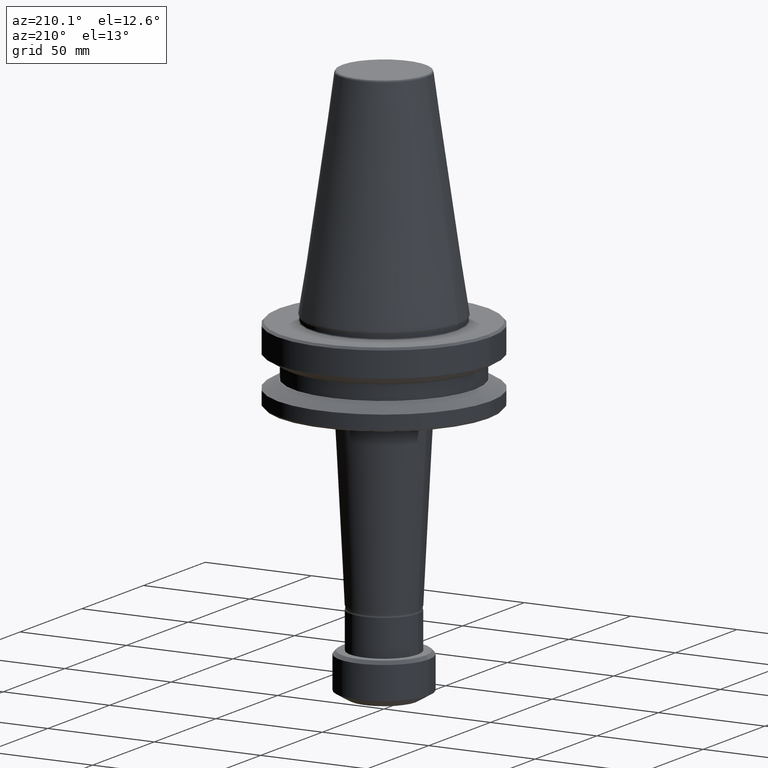
[diagram: clean part render]
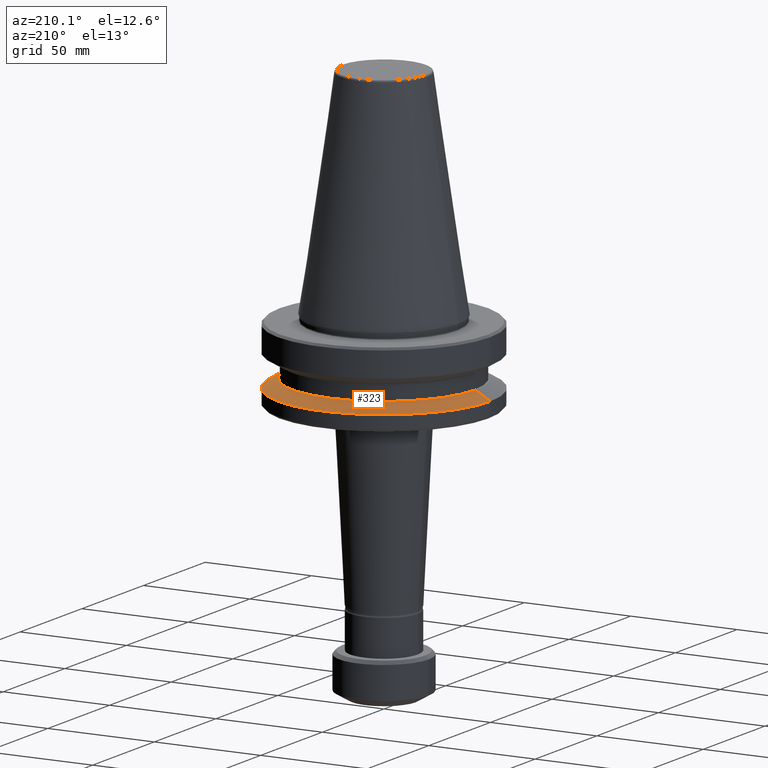
[diagram: same view with one face highlighted and labeled with its STEP entity id]
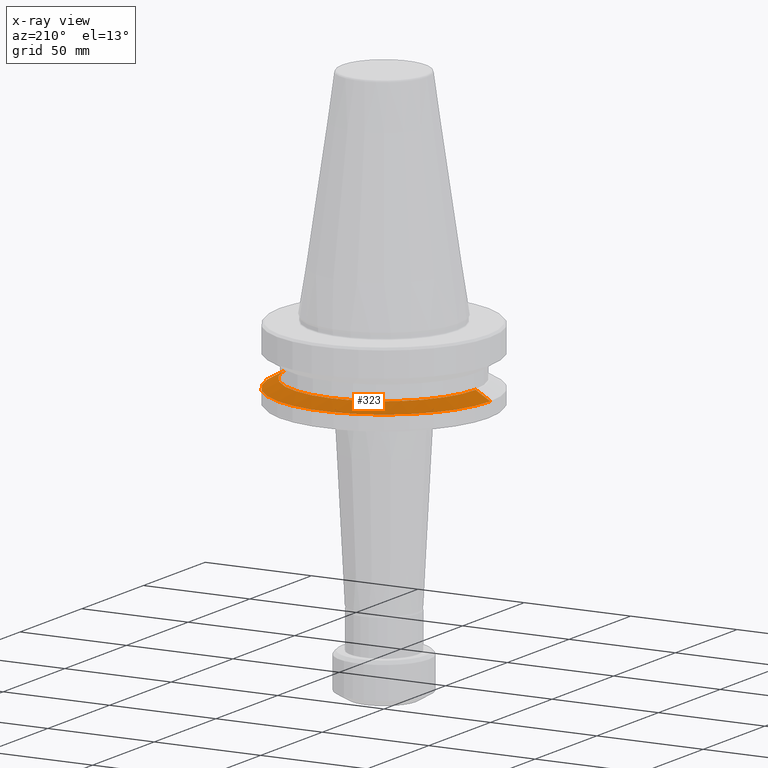
[diagram: x-ray of the same camera — body ghosted, the highlighted face saturated]
A machine part, auxiliary view. The second image highlights one B-rep face of the part: STEP entity #323.
The next image is the same camera in x-ray: the body ghosted, the highlighted face saturated — about 0% of this face is hidden behind the body in this view.
In plain terms, the highlighted conical surface has half-angle 60 deg.
Its self-contained STEP definition (entity closure, byte-faithful):
#26 = DIRECTION ( 'NONE',  ( -0.8660254037844390400, 0.0000000000000000000, -0.4999999999999993300 ) ) ;
#38 = CARTESIAN_POINT ( 'NONE',  ( -50.00000000000015600, 6.123233995736785000E-015, -30.69977999677485400 ) ) ;
#91 = VERTEX_POINT ( 'NONE', #38 ) ;
#135 = EDGE_CURVE ( 'NONE', #475, #831, #202, .T. ) ;
#202 = CIRCLE ( 'NONE', #1221, 43.07217782648964300 ) ;
#248 = DIRECTION ( 'NONE',  ( -1.000000000000000000, 0.0000000000000000000, 0.0000000000000000000 ) ) ;
#285 = DIRECTION ( 'NONE',  ( 1.000000000000000000, 0.0000000000000000000, 0.0000000000000000000 ) ) ;
#289 = EDGE_CURVE ( 'NONE', #1304, #91, #876, .T. ) ;
#323 = ADVANCED_FACE ( 'NONE', ( #529 ), #1063, .T. ) ;
#475 = VERTEX_POINT ( 'NONE', #942 ) ;
#485 = CARTESIAN_POINT ( 'NONE',  ( 0.0000000000000000000, 0.0000000000000000000, -30.69977999677485400 ) ) ;
#487 = CARTESIAN_POINT ( 'NONE',  ( 0.0000000000000000000, 0.0000000000000000000, -30.69977999677485400 ) ) ;
#529 = FACE_OUTER_BOUND ( 'NONE', #1087, .T. ) ;
#597 = LINE ( 'NONE', #926, #1378 ) ;
#634 = VECTOR ( 'NONE', #954, 1000.000000000000000 ) ;
#657 = EDGE_CURVE ( 'NONE', #831, #91, #597, .T. ) ;
#663 = ORIENTED_EDGE ( 'NONE', *, *, #1026, .T. ) ;
#666 = LINE ( 'NONE', #1198, #634 ) ;
#680 = DIRECTION ( 'NONE',  ( -0.0000000000000000000, -0.0000000000000000000, 1.000000000000000000 ) ) ;
#687 = AXIS2_PLACEMENT_3D ( 'NONE', #485, #1114, #248 ) ;
#831 = VERTEX_POINT ( 'NONE', #854 ) ;
#854 = CARTESIAN_POINT ( 'NONE',  ( -43.07217782648964300, 0.0000000000000000000, -26.70000000000071000 ) ) ;
#876 = CIRCLE ( 'NONE', #1146, 50.00000000000015600 ) ;
#926 = CARTESIAN_POINT ( 'NONE',  ( -50.00000000000015600, 0.0000000000000000000, -30.69977999677485400 ) ) ;
#942 = CARTESIAN_POINT ( 'NONE',  ( 43.07217782648964300, 5.699027233244199500E-015, -26.70000000000071000 ) ) ;
#954 = DIRECTION ( 'NONE',  ( 0.8660254037844390400, 1.060575238724907400E-016, -0.4999999999999993300 ) ) ;
#975 = ORIENTED_EDGE ( 'NONE', *, *, #135, .F. ) ;
#997 = CARTESIAN_POINT ( 'NONE',  ( 0.0000000000000000000, 0.0000000000000000000, -26.70000000000071000 ) ) ;
#1026 = EDGE_CURVE ( 'NONE', #475, #1304, #666, .T. ) ;
#1063 = CONICAL_SURFACE ( 'NONE', #687, 50.00000000000015600, 1.047197551196598500 ) ;
#1070 = ORIENTED_EDGE ( 'NONE', *, *, #657, .F. ) ;
#1087 = EDGE_LOOP ( 'NONE', ( #975, #663, #1125, #1070 ) ) ;
#1114 = DIRECTION ( 'NONE',  ( 0.0000000000000000000, 0.0000000000000000000, -1.000000000000000000 ) ) ;
#1125 = ORIENTED_EDGE ( 'NONE', *, *, #289, .T. ) ;
#1146 = AXIS2_PLACEMENT_3D ( 'NONE', #487, #680, #285 ) ;
#1198 = CARTESIAN_POINT ( 'NONE',  ( 50.00000000000015600, 6.123233995736785000E-015, -30.69977999677485400 ) ) ;
#1221 = AXIS2_PLACEMENT_3D ( 'NONE', #997, #1246, #1259 ) ;
#1246 = DIRECTION ( 'NONE',  ( -0.0000000000000000000, -0.0000000000000000000, 1.000000000000000000 ) ) ;
#1259 = DIRECTION ( 'NONE',  ( 1.000000000000000000, 0.0000000000000000000, 0.0000000000000000000 ) ) ;
#1284 = CARTESIAN_POINT ( 'NONE',  ( 50.00000000000015600, 0.0000000000000000000, -30.69977999677485400 ) ) ;
#1304 = VERTEX_POINT ( 'NONE', #1284 ) ;
#1378 = VECTOR ( 'NONE', #26, 1000.000000000000000 ) ;